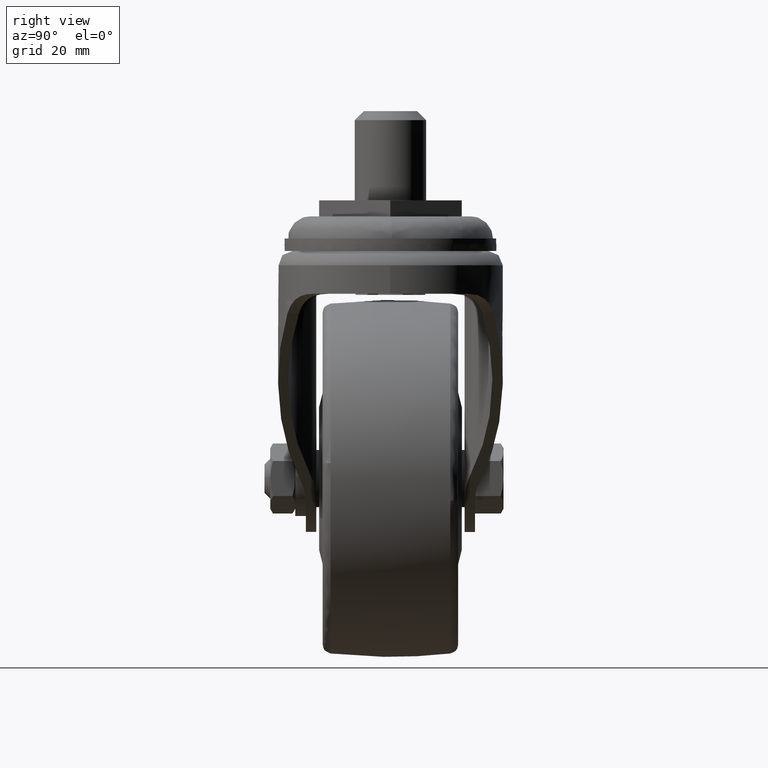
[diagram: clean part render]
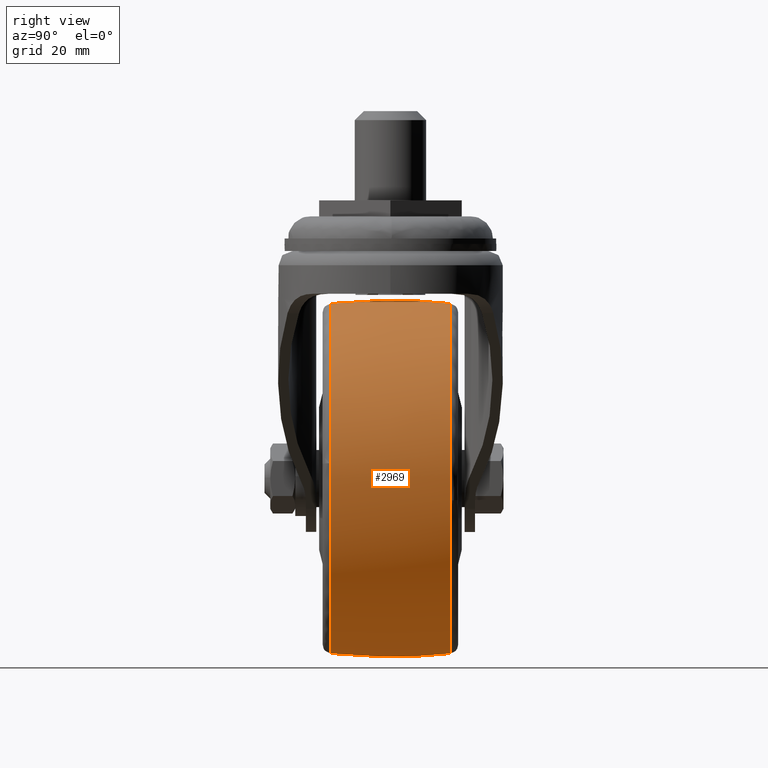
[diagram: same view with one face highlighted and labeled with its STEP entity id]
A machine part, right view. The second image highlights one B-rep face of the part: STEP entity #2969.
In plain terms, the highlighted face is a freeform B-spline surface patch.
Its self-contained STEP definition (entity closure, byte-faithful):
#2757=CARTESIAN_POINT('',(11.671681510102680,16.779649936104459,-79.648663273134247));
#2758=VERTEX_POINT('',#2757);
#2759=CARTESIAN_POINT('',(-37.0,16.779649867001449,-24.441476760499491));
#2760=VERTEX_POINT('',#2759);
#2761=CARTESIAN_POINT('',(11.671681510102678,16.779649936104455,-79.648663273134247));
#2762=CARTESIAN_POINT('',(12.058522572680992,16.779649934187546,-76.586500661565125));
#2763=CARTESIAN_POINT('',(12.058522553645471,16.779649932013360,-73.500000071918265));
#2764=CARTESIAN_POINT('',(12.058522251084428,16.779649897455585,-24.441476794197023));
#2765=CARTESIAN_POINT('',(-37.0,16.779649867001449,-24.441476760499491));
#2773=(BOUNDED_CURVE()B_SPLINE_CURVE(2,(#2761,#2762,#2763,#2764,#2765),.UNSPECIFIED.,.F.,.U.)B_SPLINE_CURVE_WITH_KNOTS((3,2,3),(0.228321257017717,0.250000000000000,0.500000000000000),.UNSPECIFIED.)CURVE()GEOMETRIC_REPRESENTATION_ITEM()RATIONAL_B_SPLINE_CURVE((0.953608358630374,0.974601772752358,1.0,0.707106781186547,1.0))REPRESENTATION_ITEM(''));
#2774=EDGE_CURVE('',#2758,#2760,#2773,.T.);
#2845=CARTESIAN_POINT('',(-37.0,16.779649867030152,-122.558523239497300));
#2846=VERTEX_POINT('',#2845);
#2847=CARTESIAN_POINT('',(-37.0,16.779649867030152,-122.558523239497300));
#2848=CARTESIAN_POINT('',(6.250905536471163,16.779649901573578,-122.558523277719620));
#2849=CARTESIAN_POINT('',(11.671681510102680,16.779649936104459,-79.648663273134247));
#2857=(BOUNDED_CURVE()B_SPLINE_CURVE(2,(#2847,#2848,#2849),.UNSPECIFIED.,.F.,.U.)B_SPLINE_CURVE_WITH_KNOTS((3,3),(0.0,0.228321257017717),.UNSPECIFIED.)CURVE()GEOMETRIC_REPRESENTATION_ITEM()RATIONAL_B_SPLINE_CURVE((1.0,0.732505008434190,0.953608358630374))REPRESENTATION_ITEM(''));
#2858=EDGE_CURVE('',#2846,#2758,#2857,.T.);
#2882=CARTESIAN_POINT('',(-37.000000000000007,-18.465704698484352,-122.359053302069500));
#2883=CARTESIAN_POINT('',(-37.0,-9.268100377648732,-123.500000000000000));
#2884=CARTESIAN_POINT('',(-37.0,-4.867810E-015,-123.500000000000000));
#2885=CARTESIAN_POINT('',(-37.000000000000014,9.268104124571597,-123.500000000000030));
#2886=CARTESIAN_POINT('',(-37.000000000000007,18.465712107046045,-122.359052383050180));
#2887=CARTESIAN_POINT('',(11.859053302069505,-18.465704698484348,-122.359053302069530));
#2888=CARTESIAN_POINT('',(12.999999999999988,-9.268100377648734,-123.500000000000000));
#2889=CARTESIAN_POINT('',(12.999999999999989,-4.867810E-015,-123.499999999999990));
#2890=CARTESIAN_POINT('',(12.999999999999988,9.268104124571599,-123.499999999999970));
#2891=CARTESIAN_POINT('',(11.859052383050221,18.465712107046055,-122.359052383050210));
#2892=CARTESIAN_POINT('',(11.859053302069510,-18.465704698484352,-73.500000000000000));
#2893=CARTESIAN_POINT('',(12.999999999999991,-9.268100377648732,-73.500000000000000));
#2894=CARTESIAN_POINT('',(12.999999999999989,-4.867810E-015,-73.500000000000000));
#2895=CARTESIAN_POINT('',(12.999999999999996,9.268104124571597,-73.500000000000000));
#2896=CARTESIAN_POINT('',(11.859052383050228,18.465712107046045,-73.500000000000000));
#2897=CARTESIAN_POINT('',(11.859053302069505,-18.465704698484348,-24.640946697930502));
#2898=CARTESIAN_POINT('',(12.999999999999988,-9.268100377648734,-23.500000000000018));
#2899=CARTESIAN_POINT('',(12.999999999999989,-4.867810E-015,-23.500000000000018));
#2900=CARTESIAN_POINT('',(12.999999999999988,9.268104124571599,-23.500000000000018));
#2901=CARTESIAN_POINT('',(11.859052383050221,18.465712107046055,-24.640947616949781));
#2902=CARTESIAN_POINT('',(-37.000000000000007,-18.465704698484352,-24.640946697930492));
#2903=CARTESIAN_POINT('',(-37.0,-9.268100377648732,-23.500000000000007));
#2904=CARTESIAN_POINT('',(-37.0,-4.867810E-015,-23.500000000000011));
#2905=CARTESIAN_POINT('',(-37.000000000000014,9.268104124571597,-23.500000000000007));
#2906=CARTESIAN_POINT('',(-37.000000000000007,18.465712107046045,-24.640947616949777));
#2914=(BOUNDED_SURFACE()B_SPLINE_SURFACE(2,2,((#2882,#2887,#2892,#2897,#2902),(#2883,#2888,#2893,#2898,#2903),(#2884,#2889,#2894,#2899,#2904),(#2885,#2890,#2895,#2900,#2905),(#2886,#2891,#2896,#2901,#2906)),.UNSPECIFIED.,.F.,.F.,.U.)B_SPLINE_SURFACE_WITH_KNOTS((3,2,3),(3,2,3),(0.0,18.709207696205858,37.418422857757200),(0.0,82.842712474618992,165.685424949238010),.UNSPECIFIED.)GEOMETRIC_REPRESENTATION_ITEM()RATIONAL_B_SPLINE_SURFACE(((0.977858070588099,0.691450072750839,0.977858070588099,0.691450072750839,0.977858070588099),(0.986984865199306,0.697903691110920,0.986984865199306,0.697903691110920,0.986984865199306),(1.0,0.707106781186548,1.0,0.707106781186548,1.0),(0.986984860006009,0.697903687438704,0.986984860006009,0.697903687438704,0.986984860006009),(0.977858063304555,0.691450067600595,0.977858063304555,0.691450067600595,0.977858063304555)))REPRESENTATION_ITEM('')SURFACE());
#2915=CARTESIAN_POINT('',(-37.0,-16.779637920549199,-122.558524584321300));
#2916=VERTEX_POINT('',#2915);
#2917=CARTESIAN_POINT('',(-37.0,-16.779637920549199,-122.558524584321300));
#2918=CARTESIAN_POINT('',(-37.000000000000043,-12.776367559165900,-123.009180097572300));
#2919=CARTESIAN_POINT('',(-36.999999999999950,-1.586281364282039,-123.814258282421310));
#2920=CARTESIAN_POINT('',(-37.000000000000057,9.643407289933570,-123.362239167050400));
#2921=CARTESIAN_POINT('',(-37.0,16.779649867030152,-122.558523239497300));
#2922=B_SPLINE_CURVE_WITH_KNOTS('',3,(#2917,#2918,#2919,#2920,#2921),.UNSPECIFIED.,.F.,.U.,(4,1,4),(-2.801762E-009,12.085685451898700,33.629693436592888),.UNSPECIFIED.);
#2923=EDGE_CURVE('',#2916,#2846,#2922,.T.);
#2924=ORIENTED_EDGE('',*,*,#2923,.T.);
#2925=ORIENTED_EDGE('',*,*,#2858,.T.);
#2926=ORIENTED_EDGE('',*,*,#2774,.T.);
#2927=CARTESIAN_POINT('',(-37.0,-16.779637920490050,-24.441475415672009));
#2928=VERTEX_POINT('',#2927);
#2929=CARTESIAN_POINT('',(-37.0,-16.779637920490050,-24.441475415672009));
#2930=CARTESIAN_POINT('',(-36.999999999999979,-11.035836471647450,-23.794740682324061));
#2931=CARTESIAN_POINT('',(-37.000000000000128,0.176256226108277,-23.185630177677631));
#2932=CARTESIAN_POINT('',(-37.0,11.383937440151660,-23.833968678960542));
#2933=CARTESIAN_POINT('',(-37.0,16.779649867001449,-24.441476760499491));
#2934=B_SPLINE_CURVE_WITH_KNOTS('',3,(#2929,#2930,#2931,#2932,#2933),.UNSPECIFIED.,.F.,.U.,(4,1,4),(-2.802167E-009,17.340285091781460,33.629693436504482),.UNSPECIFIED.);
#2935=EDGE_CURVE('',#2928,#2760,#2934,.T.);
#2936=ORIENTED_EDGE('',*,*,#2935,.F.);
#2937=CARTESIAN_POINT('',(11.868843852253340,-16.779638064477808,-69.190150028960716));
#2938=VERTEX_POINT('',#2937);
#2939=CARTESIAN_POINT('',(11.868843852253335,-16.779638064477805,-69.190150028960730));
#2940=CARTESIAN_POINT('',(7.922360370652805,-16.779637992470430,-24.441475359723903));
#2941=CARTESIAN_POINT('',(-37.0,-16.779637920490050,-24.441475415672009));
#2949=(BOUNDED_CURVE()B_SPLINE_CURVE(2,(#2939,#2940,#2941),.UNSPECIFIED.,.F.,.U.)B_SPLINE_CURVE_WITH_KNOTS((3,3),(0.265281544351793,0.500000000000000),.UNSPECIFIED.)CURVE()GEOMETRIC_REPRESENTATION_ITEM()RATIONAL_B_SPLINE_CURVE((0.966381852339156,0.725010224041096,1.0))REPRESENTATION_ITEM(''));
#2950=EDGE_CURVE('',#2938,#2928,#2949,.T.);
#2951=ORIENTED_EDGE('',*,*,#2950,.F.);
#2952=CARTESIAN_POINT('',(-37.0,-16.779637920549199,-122.558524584321300));
#2953=CARTESIAN_POINT('',(12.058522565243713,-16.779637986460859,-122.558524533090280));
#2954=CARTESIAN_POINT('',(12.058523199632280,-16.779638058411692,-73.499999892817485));
#2955=CARTESIAN_POINT('',(12.058523227552154,-16.779638061578293,-71.340901001122916));
#2956=CARTESIAN_POINT('',(11.868843852253335,-16.779638064477805,-69.190150028960730));
#2964=(BOUNDED_CURVE()B_SPLINE_CURVE(2,(#2952,#2953,#2954,#2955,#2956),.UNSPECIFIED.,.F.,.U.)B_SPLINE_CURVE_WITH_KNOTS((3,2,3),(0.0,0.250000000000000,0.265281544351793),.UNSPECIFIED.)CURVE()GEOMETRIC_REPRESENTATION_ITEM()RATIONAL_B_SPLINE_CURVE((1.0,0.707106781186547,1.0,0.982096557145452,0.966381852339156))REPRESENTATION_ITEM(''));
#2965=EDGE_CURVE('',#2916,#2938,#2964,.T.);
#2966=ORIENTED_EDGE('',*,*,#2965,.F.);
#2967=EDGE_LOOP('',(#2924,#2925,#2926,#2936,#2951,#2966));
#2968=FACE_OUTER_BOUND('',#2967,.T.);
#2969=ADVANCED_FACE('',(#2968),#2914,.T.);